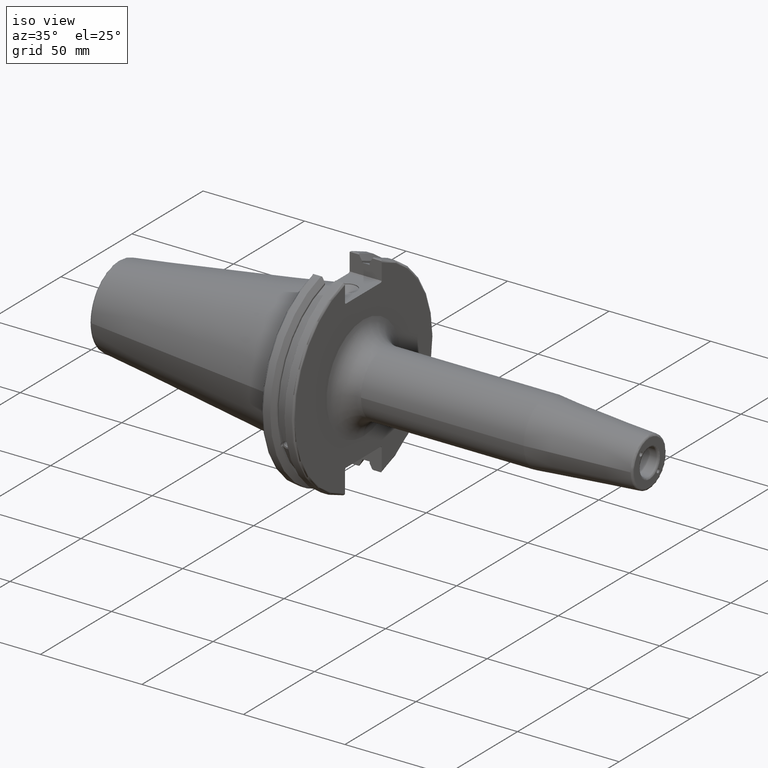
[diagram: clean part render]
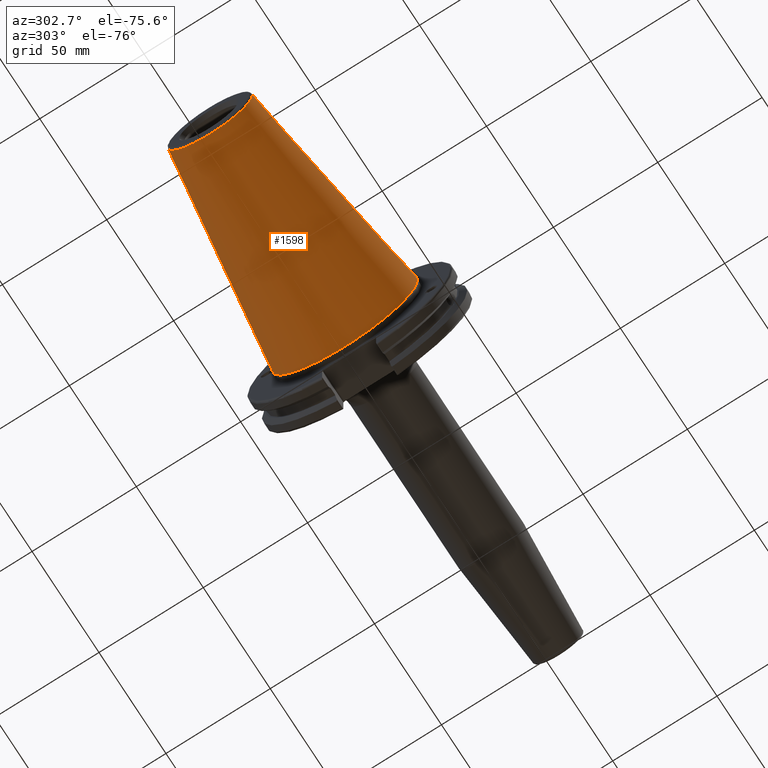
[diagram: tour spotlight — one face highlighted and labeled with its STEP entity id]
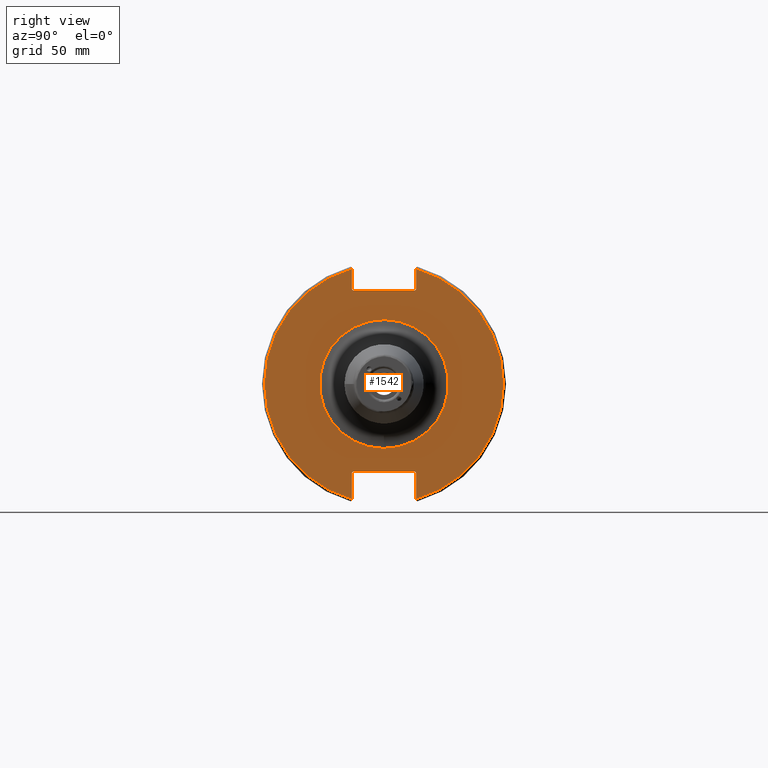
[diagram: tour spotlight — one face highlighted and labeled with its STEP entity id]
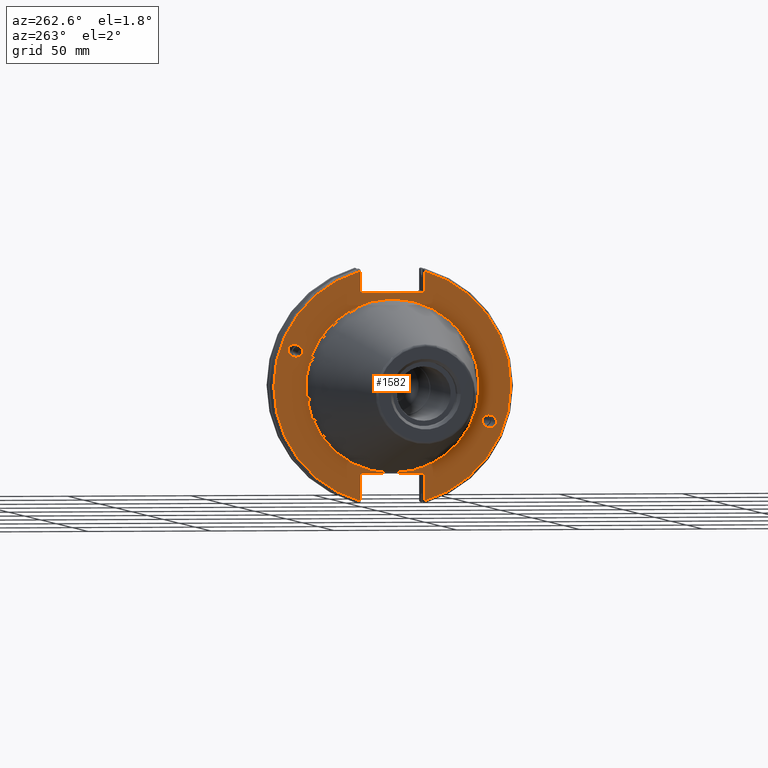
[diagram: tour spotlight — one face highlighted and labeled with its STEP entity id]
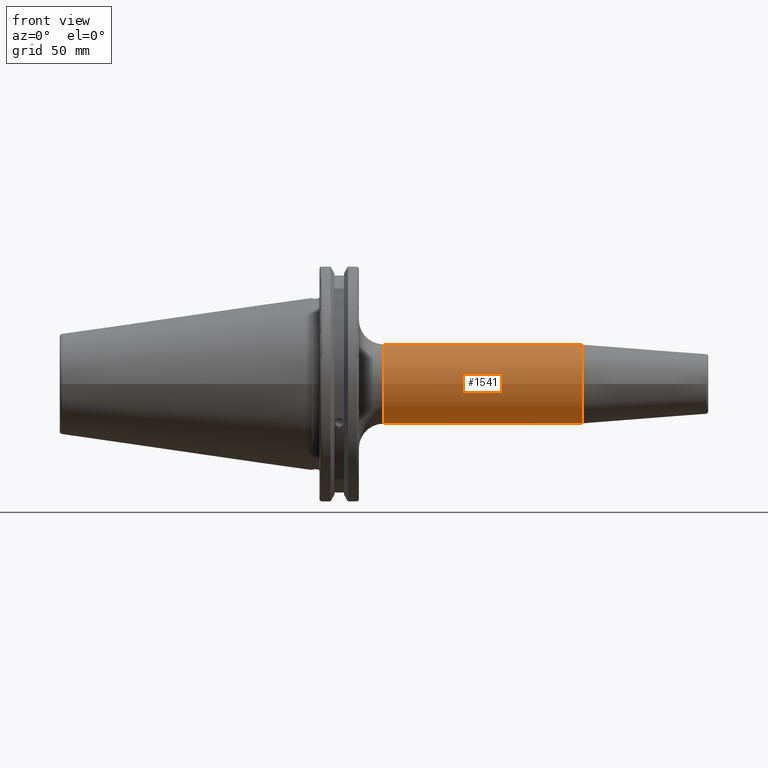
[diagram: tour spotlight — one face highlighted and labeled with its STEP entity id]
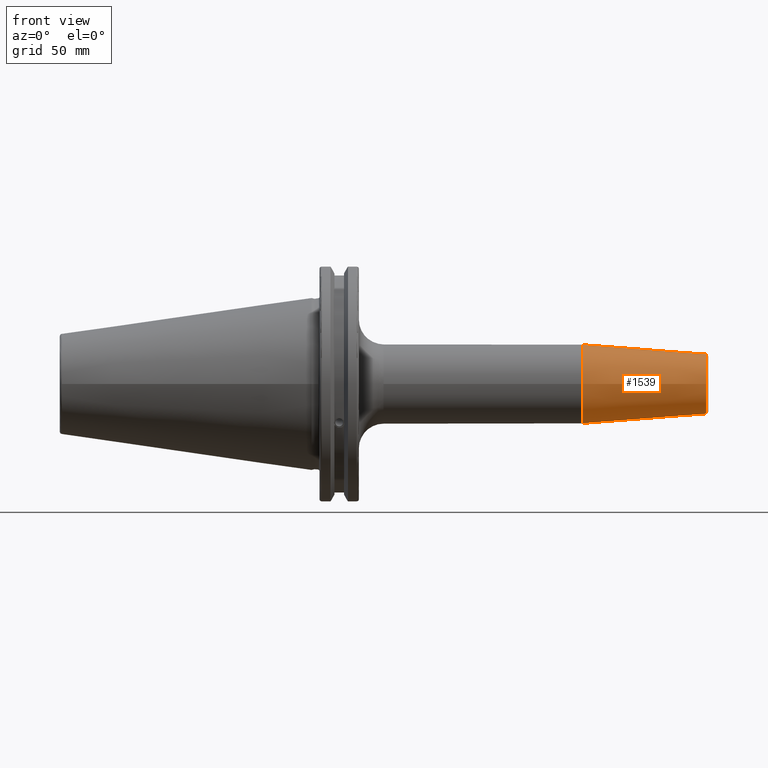
[diagram: tour spotlight — one face highlighted and labeled with its STEP entity id]
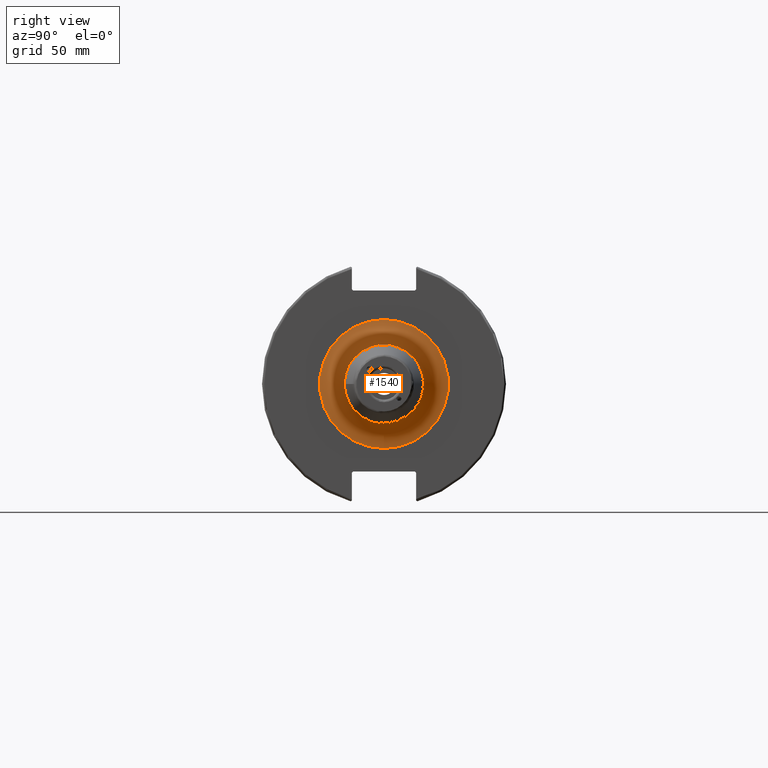
[diagram: tour spotlight — one face highlighted and labeled with its STEP entity id]
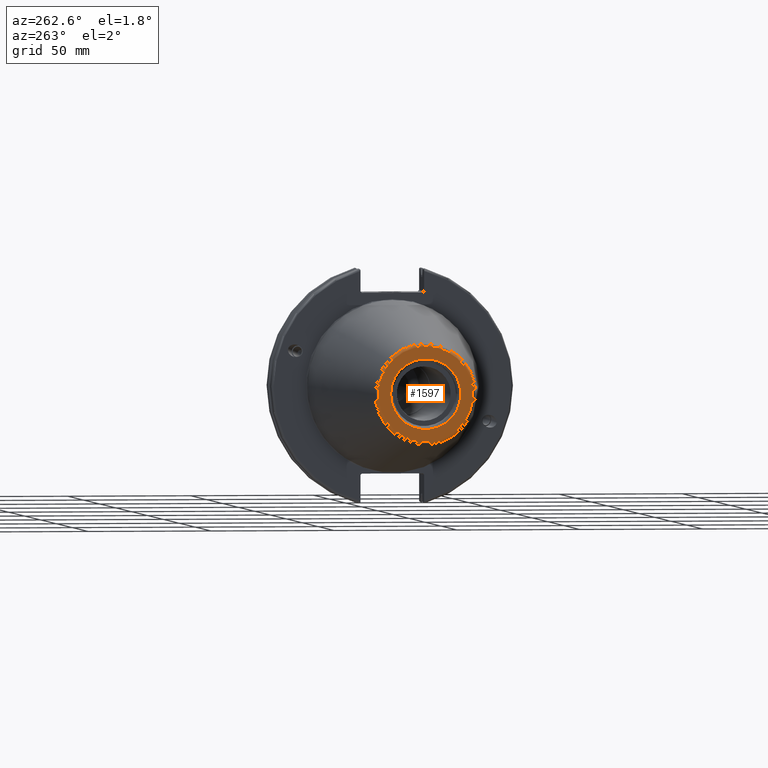
[diagram: tour spotlight — one face highlighted and labeled with its STEP entity id]
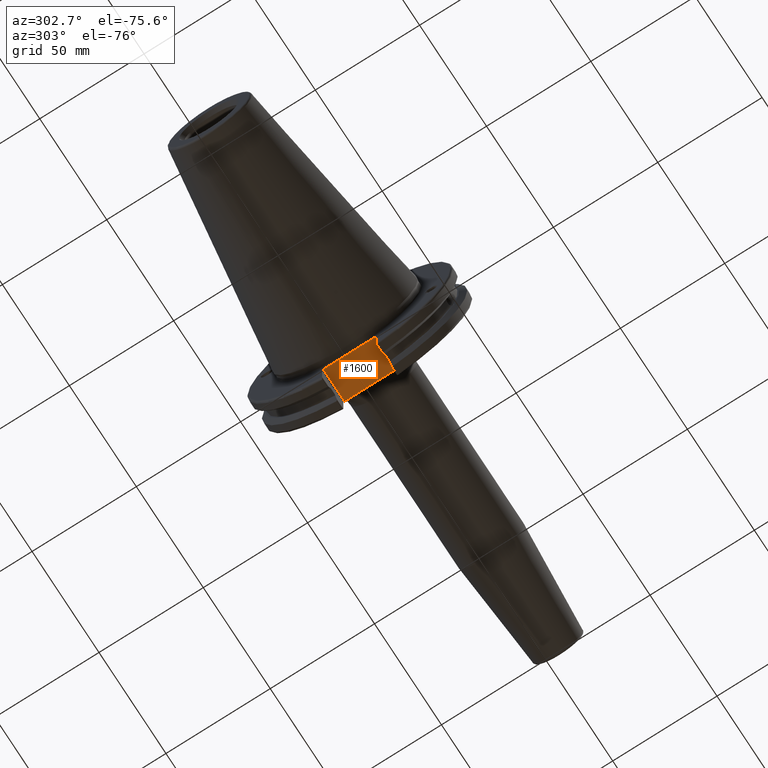
[diagram: tour spotlight — one face highlighted and labeled with its STEP entity id]
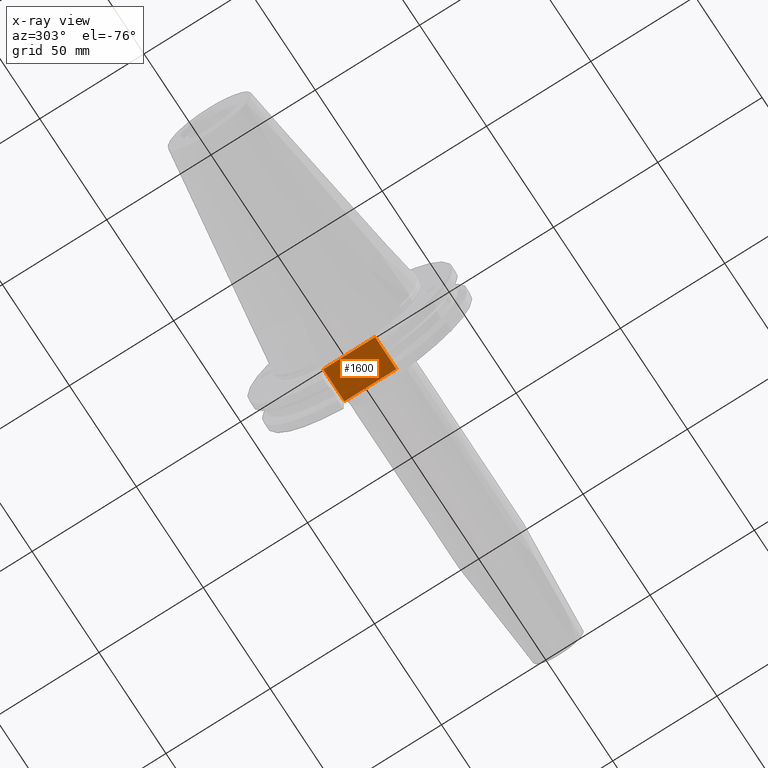
[diagram: x-ray of the same camera — body ghosted, this tour face saturated]
A machine part: a face-by-face anatomy tour. The part has 92 B-rep faces; the first image is the clean iso view, then the 8 largest visible faces are spotlighted one at a time (largest first), each with its STEP entity span.

Face 1 — auxiliary view, entity #1598. In plain terms, the highlighted conical surface has half-angle 8.297 deg.
Definition (entity closure, byte-faithful):
#79=CONICAL_SURFACE('',#1785,27.5166666666666,0.14481249823894);
#163=LINE('',#3162,#261);
#261=VECTOR('',#2180,27.5166666666666);
#437=FACE_OUTER_BOUND('',#549,.T.);
#549=EDGE_LOOP('',(#1394,#1395,#1396,#1397,#1398));
#643=CIRCLE('',#1779,20.233121911427);
#644=CIRCLE('',#1780,20.233121911427);
#648=CIRCLE('',#1786,34.925);
#803=VERTEX_POINT('',#3149);
#804=VERTEX_POINT('',#3150);
#807=VERTEX_POINT('',#3160);
#1015=EDGE_CURVE('',#803,#804,#643,.T.);
#1016=EDGE_CURVE('',#804,#803,#644,.T.);
#1020=EDGE_CURVE('',#807,#807,#648,.T.);
#1021=EDGE_CURVE('',#807,#804,#163,.T.);
#1394=ORIENTED_EDGE('',*,*,#1020,.F.);
#1395=ORIENTED_EDGE('',*,*,#1021,.T.);
#1396=ORIENTED_EDGE('',*,*,#1015,.F.);
#1397=ORIENTED_EDGE('',*,*,#1016,.F.);
#1398=ORIENTED_EDGE('',*,*,#1021,.F.);
#1598=ADVANCED_FACE('',(#437),#79,.T.);
#1779=AXIS2_PLACEMENT_3D('',#3151,#2164,#2165);
#1780=AXIS2_PLACEMENT_3D('',#3152,#2166,#2167);
#1785=AXIS2_PLACEMENT_3D('',#3159,#2176,#2177);
#1786=AXIS2_PLACEMENT_3D('',#3161,#2178,#2179);
#2164=DIRECTION('center_axis',(-1.,0.,0.));
#2165=DIRECTION('ref_axis',(0.,-1.,3.06161699786838E-17));
#2166=DIRECTION('center_axis',(-1.,0.,0.));
#2167=DIRECTION('ref_axis',(0.,-1.,3.06161699786838E-17));
#2176=DIRECTION('center_axis',(1.,0.,0.));
#2177=DIRECTION('ref_axis',(0.,1.,0.));
#2178=DIRECTION('center_axis',(1.,0.,0.));
#2179=DIRECTION('ref_axis',(0.,0.,-1.));
#2180=DIRECTION('',(-0.989532981063281,0.144306893071729,1.76724974695192E-17));
#3149=CARTESIAN_POINT('',(-100.744306893072,-2.47784279855872E-15,20.233121911427));
#3150=CARTESIAN_POINT('',(-100.744306893072,-20.233121911427,-2.47784279855872E-15));
#3151=CARTESIAN_POINT('Origin',(-100.744306893072,0.,-3.09730349819841E-15));
#3152=CARTESIAN_POINT('Origin',(-100.744306893072,0.,-3.09730349819841E-15));
#3159=CARTESIAN_POINT('Origin',(-50.8,0.,0.));
#3160=CARTESIAN_POINT('',(-8.88178419700125E-15,-34.925,-4.27707894602213E-15));
#3161=CARTESIAN_POINT('Origin',(0.,0.,0.));
#3162=CARTESIAN_POINT('',(-50.8,-27.5166666666666,-3.3698197756538E-15));

Face 2 — right view, entity #1542. In plain terms, the highlighted planar face has unit normal (1, 0, 0).
Definition (entity closure, byte-faithful):
#88=LINE('',#2323,#186);
#89=LINE('',#2325,#187);
#90=LINE('',#2327,#188);
#91=LINE('',#2329,#189);
#92=LINE('',#2331,#190);
#93=LINE('',#2335,#191);
#94=LINE('',#2337,#192);
#95=LINE('',#2339,#193);
#96=LINE('',#2341,#194);
#97=LINE('',#2342,#195);
#186=VECTOR('',#1881,10.);
#187=VECTOR('',#1882,10.);
#188=VECTOR('',#1883,10.);
#189=VECTOR('',#1884,10.);
#190=VECTOR('',#1885,10.);
#191=VECTOR('',#1888,10.);
#192=VECTOR('',#1889,10.);
#193=VECTOR('',#1890,10.);
#194=VECTOR('',#1891,10.);
#195=VECTOR('',#1892,10.);
#314=FACE_BOUND('',#477,.T.);
#338=PLANE('',#1673);
#381=FACE_OUTER_BOUND('',#476,.T.);
#476=EDGE_LOOP('',(#1088,#1089,#1090,#1091,#1092,#1093,#1094,#1095,#1096,
#1097,#1098,#1099));
#477=EDGE_LOOP('',(#1100));
#592=CIRCLE('',#1670,26.);
#594=CIRCLE('',#1674,48.2125);
#595=CIRCLE('',#1675,48.2125);
#672=VERTEX_POINT('',#2312);
#673=VERTEX_POINT('',#2319);
#674=VERTEX_POINT('',#2320);
#675=VERTEX_POINT('',#2322);
#676=VERTEX_POINT('',#2324);
#677=VERTEX_POINT('',#2326);
#678=VERTEX_POINT('',#2328);
#679=VERTEX_POINT('',#2330);
#680=VERTEX_POINT('',#2332);
#681=VERTEX_POINT('',#2334);
#682=VERTEX_POINT('',#2336);
#683=VERTEX_POINT('',#2338);
#684=VERTEX_POINT('',#2340);
#834=EDGE_CURVE('',#672,#672,#592,.T.);
#837=EDGE_CURVE('',#673,#674,#594,.T.);
#838=EDGE_CURVE('',#673,#675,#88,.T.);
#839=EDGE_CURVE('',#676,#675,#89,.T.);
#840=EDGE_CURVE('',#676,#677,#90,.T.);
#841=EDGE_CURVE('',#678,#677,#91,.T.);
#842=EDGE_CURVE('',#678,#679,#92,.T.);
#843=EDGE_CURVE('',#680,#679,#595,.T.);
#844=EDGE_CURVE('',#680,#681,#93,.T.);
#845=EDGE_CURVE('',#682,#681,#94,.T.);
#846=EDGE_CURVE('',#682,#683,#95,.T.);
#847=EDGE_CURVE('',#684,#683,#96,.T.);
#848=EDGE_CURVE('',#684,#674,#97,.T.);
#1088=ORIENTED_EDGE('',*,*,#837,.F.);
#1089=ORIENTED_EDGE('',*,*,#838,.T.);
#1090=ORIENTED_EDGE('',*,*,#839,.F.);
#1091=ORIENTED_EDGE('',*,*,#840,.T.);
#1092=ORIENTED_EDGE('',*,*,#841,.F.);
#1093=ORIENTED_EDGE('',*,*,#842,.T.);
#1094=ORIENTED_EDGE('',*,*,#843,.F.);
#1095=ORIENTED_EDGE('',*,*,#844,.T.);
#1096=ORIENTED_EDGE('',*,*,#845,.F.);
#1097=ORIENTED_EDGE('',*,*,#846,.T.);
#1098=ORIENTED_EDGE('',*,*,#847,.F.);
#1099=ORIENTED_EDGE('',*,*,#848,.T.);
#1100=ORIENTED_EDGE('',*,*,#834,.F.);
#1542=ADVANCED_FACE('',(#381,#314),#338,.T.);
#1670=AXIS2_PLACEMENT_3D('',#2314,#1870,#1871);
#1673=AXIS2_PLACEMENT_3D('',#2318,#1877,#1878);
#1674=AXIS2_PLACEMENT_3D('',#2321,#1879,#1880);
#1675=AXIS2_PLACEMENT_3D('',#2333,#1886,#1887);
#1870=DIRECTION('center_axis',(1.,0.,0.));
#1871=DIRECTION('ref_axis',(0.,-1.,-1.22464679914735E-16));
#1877=DIRECTION('center_axis',(1.,0.,0.));
#1878=DIRECTION('ref_axis',(0.,0.,-1.));
#1879=DIRECTION('center_axis',(-1.,0.,0.));
#1880=DIRECTION('ref_axis',(0.,1.,-6.12323399573677E-17));
#1881=DIRECTION('',(0.,0.,-1.));
#1882=DIRECTION('',(0.,0.707106781186549,0.707106781186546));
#1883=DIRECTION('',(0.,-1.,0.));
#1884=DIRECTION('',(0.,0.707106781186549,-0.707106781186546));
#1885=DIRECTION('',(0.,0.,1.));
#1886=DIRECTION('center_axis',(-1.,0.,0.));
#1887=DIRECTION('ref_axis',(0.,-1.,1.60812264967664E-16));
#1888=DIRECTION('',(0.,0.,1.));
#1889=DIRECTION('',(0.,-0.707106781186549,-0.707106781186546));
#1890=DIRECTION('',(0.,1.,0.));
#1891=DIRECTION('',(0.,-0.707106781186549,0.707106781186546));
#1892=DIRECTION('',(0.,0.,-1.));
#2312=CARTESIAN_POINT('',(19.05,-3.18408167778312E-15,-26.));
#2314=CARTESIAN_POINT('Origin',(19.05,0.,0.));
#2318=CARTESIAN_POINT('Origin',(19.05,0.,0.));
#2319=CARTESIAN_POINT('',(19.05,12.95,46.4407434937254));
#2320=CARTESIAN_POINT('',(19.05,12.95,-46.4407434937254));
#2321=CARTESIAN_POINT('Origin',(19.05,0.,0.));
#2322=CARTESIAN_POINT('',(19.05,12.95,38.219));
#2323=CARTESIAN_POINT('',(19.05,12.95,18.8595));
#2324=CARTESIAN_POINT('',(19.05,12.45,37.719));
#2325=CARTESIAN_POINT('',(19.05,0.0327499999999836,25.30175));
#2326=CARTESIAN_POINT('',(19.05,-12.45,37.719));
#2327=CARTESIAN_POINT('',(19.05,0.,37.719));
#2328=CARTESIAN_POINT('',(19.05,-12.95,38.219));
#2329=CARTESIAN_POINT('',(19.05,-0.0327499999999817,25.30175));
#2330=CARTESIAN_POINT('',(19.05,-12.95,46.4407434937254));
#2331=CARTESIAN_POINT('',(19.05,-12.95,18.8595));
#2332=CARTESIAN_POINT('',(19.05,-12.95,-46.4407434937254));
#2333=CARTESIAN_POINT('Origin',(19.05,0.,0.));
#2334=CARTESIAN_POINT('',(19.05,-12.95,-35.806));
#2335=CARTESIAN_POINT('',(19.05,-12.95,-17.653));
#2336=CARTESIAN_POINT('',(19.05,-12.45,-35.306));
#2337=CARTESIAN_POINT('',(19.05,-0.635999999999989,-23.492));
#2338=CARTESIAN_POINT('',(19.05,12.45,-35.306));
#2339=CARTESIAN_POINT('',(19.05,-3.33066907387547E-15,-35.306));
#2340=CARTESIAN_POINT('',(19.05,12.95,-35.806));
#2341=CARTESIAN_POINT('',(19.05,0.635999999999982,-23.492));
#2342=CARTESIAN_POINT('',(19.05,12.95,-17.653));

Face 3 — auxiliary view, entity #1582. In plain terms, the highlighted planar face has unit normal (-1, 0, 0).
Definition (entity closure, byte-faithful):
#136=LINE('',#2936,#234);
#137=LINE('',#2938,#235);
#138=LINE('',#2940,#236);
#139=LINE('',#2942,#237);
#140=LINE('',#2944,#238);
#141=LINE('',#2948,#239);
#142=LINE('',#2950,#240);
#143=LINE('',#2952,#241);
#144=LINE('',#2954,#242);
#145=LINE('',#2955,#243);
#234=VECTOR('',#2095,10.);
#235=VECTOR('',#2096,10.);
#236=VECTOR('',#2097,10.);
#237=VECTOR('',#2098,10.);
#238=VECTOR('',#2099,10.);
#239=VECTOR('',#2102,10.);
#240=VECTOR('',#2103,10.);
#241=VECTOR('',#2104,10.);
#242=VECTOR('',#2105,10.);
#243=VECTOR('',#2106,10.);
#327=FACE_BOUND('',#530,.T.);
#328=FACE_BOUND('',#531,.T.);
#329=FACE_BOUND('',#532,.T.);
#335=ELLIPSE('',#1712,3.05193647190364,2.5);
#336=ELLIPSE('',#1746,3.05193647190364,2.5);
#349=PLANE('',#1756);
#421=FACE_OUTER_BOUND('',#529,.T.);
#529=EDGE_LOOP('',(#1287,#1288,#1289,#1290,#1291,#1292,#1293,#1294,#1295,
#1296,#1297,#1298));
#530=EDGE_LOOP('',(#1299));
#531=EDGE_LOOP('',(#1300));
#532=EDGE_LOOP('',(#1301));
#633=CIRCLE('',#1754,35.125);
#635=CIRCLE('',#1757,48.2125);
#636=CIRCLE('',#1758,48.2125);
#721=VERTEX_POINT('',#2653);
#759=VERTEX_POINT('',#2912);
#764=VERTEX_POINT('',#2927);
#765=VERTEX_POINT('',#2932);
#766=VERTEX_POINT('',#2933);
#767=VERTEX_POINT('',#2935);
#768=VERTEX_POINT('',#2937);
#769=VERTEX_POINT('',#2939);
#770=VERTEX_POINT('',#2941);
#771=VERTEX_POINT('',#2943);
#772=VERTEX_POINT('',#2945);
#773=VERTEX_POINT('',#2947);
#774=VERTEX_POINT('',#2949);
#775=VERTEX_POINT('',#2951);
#776=VERTEX_POINT('',#2953);
#898=EDGE_CURVE('',#721,#721,#335,.T.);
#949=EDGE_CURVE('',#759,#759,#336,.T.);
#956=EDGE_CURVE('',#764,#764,#633,.T.);
#958=EDGE_CURVE('',#765,#766,#635,.T.);
#959=EDGE_CURVE('',#765,#767,#136,.T.);
#960=EDGE_CURVE('',#768,#767,#137,.T.);
#961=EDGE_CURVE('',#768,#769,#138,.T.);
#962=EDGE_CURVE('',#770,#769,#139,.T.);
#963=EDGE_CURVE('',#770,#771,#140,.T.);
#964=EDGE_CURVE('',#772,#771,#636,.T.);
#965=EDGE_CURVE('',#772,#773,#141,.T.);
#966=EDGE_CURVE('',#774,#773,#142,.T.);
#967=EDGE_CURVE('',#774,#775,#143,.T.);
#968=EDGE_CURVE('',#776,#775,#144,.T.);
#969=EDGE_CURVE('',#776,#766,#145,.T.);
#1287=ORIENTED_EDGE('',*,*,#958,.F.);
#1288=ORIENTED_EDGE('',*,*,#959,.T.);
#1289=ORIENTED_EDGE('',*,*,#960,.F.);
#1290=ORIENTED_EDGE('',*,*,#961,.T.);
#1291=ORIENTED_EDGE('',*,*,#962,.F.);
#1292=ORIENTED_EDGE('',*,*,#963,.T.);
#1293=ORIENTED_EDGE('',*,*,#964,.F.);
#1294=ORIENTED_EDGE('',*,*,#965,.T.);
#1295=ORIENTED_EDGE('',*,*,#966,.F.);
#1296=ORIENTED_EDGE('',*,*,#967,.T.);
#1297=ORIENTED_EDGE('',*,*,#968,.F.);
#1298=ORIENTED_EDGE('',*,*,#969,.T.);
#1299=ORIENTED_EDGE('',*,*,#898,.T.);
#1300=ORIENTED_EDGE('',*,*,#949,.T.);
#1301=ORIENTED_EDGE('',*,*,#956,.F.);
#1582=ADVANCED_FACE('',(#421,#327,#328,#329),#349,.T.);
#1712=AXIS2_PLACEMENT_3D('',#2655,#1985,#1986);
#1746=AXIS2_PLACEMENT_3D('',#2914,#2069,#2070);
#1754=AXIS2_PLACEMENT_3D('',#2929,#2087,#2088);
#1756=AXIS2_PLACEMENT_3D('',#2931,#2091,#2092);
#1757=AXIS2_PLACEMENT_3D('',#2934,#2093,#2094);
#1758=AXIS2_PLACEMENT_3D('',#2946,#2100,#2101);
#1985=DIRECTION('center_axis',(1.,0.,0.));
#1986=DIRECTION('ref_axis',(0.,-0.939692620785908,-0.342020143325668));
#2069=DIRECTION('center_axis',(1.,0.,0.));
#2070=DIRECTION('ref_axis',(0.,0.939692620785908,0.342020143325669));
#2087=DIRECTION('center_axis',(-1.,0.,0.));
#2088=DIRECTION('ref_axis',(0.,-1.,1.83697019872103E-16));
#2091=DIRECTION('center_axis',(-1.,0.,0.));
#2092=DIRECTION('ref_axis',(0.,0.,1.));
#2093=DIRECTION('center_axis',(1.,0.,0.));
#2094=DIRECTION('ref_axis',(0.,-1.,1.60812264967664E-16));
#2095=DIRECTION('',(0.,0.,-1.));
#2096=DIRECTION('',(0.,-0.707106781186549,0.707106781186546));
#2097=DIRECTION('',(0.,1.,0.));
#2098=DIRECTION('',(0.,-0.707106781186549,-0.707106781186546));
#2099=DIRECTION('',(0.,0.,1.));
#2100=DIRECTION('center_axis',(1.,0.,0.));
#2101=DIRECTION('ref_axis',(0.,1.,-6.12323399573677E-17));
#2102=DIRECTION('',(0.,0.,1.));
#2103=DIRECTION('',(0.,0.707106781186549,-0.707106781186546));
#2104=DIRECTION('',(0.,-1.,0.));
#2105=DIRECTION('',(0.,0.707106781186549,0.707106781186546));
#2106=DIRECTION('',(0.,0.,-1.));
#2653=CARTESIAN_POINT('',(3.175,-36.5992078912529,-13.3210222701368));
#2655=CARTESIAN_POINT('Origin',(3.175,-39.4670900730082,-14.3648460196781));
#2912=CARTESIAN_POINT('',(3.175,36.5992078912529,13.3210222701368));
#2914=CARTESIAN_POINT('Origin',(3.175,39.4670900730082,14.3648460196781));
#2927=CARTESIAN_POINT('',(3.175,-4.30157188200508E-15,35.125));
#2929=CARTESIAN_POINT('Origin',(3.175,0.,0.));
#2931=CARTESIAN_POINT('Origin',(3.175,49.2125,0.));
#2932=CARTESIAN_POINT('',(3.175,-12.95,46.4407434937254));
#2933=CARTESIAN_POINT('',(3.175,-12.95,-46.4407434937254));
#2934=CARTESIAN_POINT('Origin',(3.175,0.,0.));
#2935=CARTESIAN_POINT('',(3.175,-12.95,38.219));
#2936=CARTESIAN_POINT('',(3.175,-12.95,18.8595));
#2937=CARTESIAN_POINT('',(3.175,-12.45,37.719));
#2938=CARTESIAN_POINT('',(3.175,12.2703750000001,12.998625));
#2939=CARTESIAN_POINT('',(3.175,12.45,37.719));
#2940=CARTESIAN_POINT('',(3.175,24.60625,37.719));
#2941=CARTESIAN_POINT('',(3.175,12.95,38.219));
#2942=CARTESIAN_POINT('',(3.175,12.335875,37.604875));
#2943=CARTESIAN_POINT('',(3.175,12.95,46.4407434937254));
#2944=CARTESIAN_POINT('',(3.175,12.95,18.8595));
#2945=CARTESIAN_POINT('',(3.175,12.95,-46.4407434937254));
#2946=CARTESIAN_POINT('Origin',(3.175,0.,0.));
#2947=CARTESIAN_POINT('',(3.175,12.95,-35.806));
#2948=CARTESIAN_POINT('',(3.175,12.95,-17.653));
#2949=CARTESIAN_POINT('',(3.175,12.45,-35.306));
#2950=CARTESIAN_POINT('',(3.175,12.939125,-35.795125));
#2951=CARTESIAN_POINT('',(3.175,-12.45,-35.306));
#2952=CARTESIAN_POINT('',(3.175,24.60625,-35.306));
#2953=CARTESIAN_POINT('',(3.175,-12.95,-35.806));
#2954=CARTESIAN_POINT('',(3.175,11.6671250000001,-11.188875));
#2955=CARTESIAN_POINT('',(3.175,-12.95,-17.653));

Face 4 — front view, entity #1541. In plain terms, the highlighted cylindrical surface (bore or boss wall) has radius 16 mm, axis along (1, 0, 0).
Definition (entity closure, byte-faithful):
#87=LINE('',#2317,#185);
#185=VECTOR('',#1876,16.);
#282=CYLINDRICAL_SURFACE('',#1672,16.);
#380=FACE_OUTER_BOUND('',#475,.T.);
#475=EDGE_LOOP('',(#1083,#1084,#1085,#1086,#1087));
#589=CIRCLE('',#1666,16.);
#590=CIRCLE('',#1668,16.);
#593=CIRCLE('',#1671,16.);
#669=VERTEX_POINT('',#2305);
#670=VERTEX_POINT('',#2309);
#671=VERTEX_POINT('',#2310);
#831=EDGE_CURVE('',#669,#669,#589,.T.);
#832=EDGE_CURVE('',#670,#671,#590,.T.);
#835=EDGE_CURVE('',#671,#670,#593,.T.);
#836=EDGE_CURVE('',#669,#670,#87,.T.);
#1083=ORIENTED_EDGE('',*,*,#831,.F.);
#1084=ORIENTED_EDGE('',*,*,#836,.T.);
#1085=ORIENTED_EDGE('',*,*,#835,.F.);
#1086=ORIENTED_EDGE('',*,*,#832,.F.);
#1087=ORIENTED_EDGE('',*,*,#836,.F.);
#1541=ADVANCED_FACE('',(#380),#282,.T.);
#1666=AXIS2_PLACEMENT_3D('',#2307,#1862,#1863);
#1668=AXIS2_PLACEMENT_3D('',#2311,#1866,#1867);
#1671=AXIS2_PLACEMENT_3D('',#2315,#1872,#1873);
#1672=AXIS2_PLACEMENT_3D('',#2316,#1874,#1875);
#1862=DIRECTION('center_axis',(1.,0.,0.));
#1863=DIRECTION('ref_axis',(0.,0.,-1.));
#1866=DIRECTION('center_axis',(-1.,0.,0.));
#1867=DIRECTION('ref_axis',(0.,-1.,-1.22464679914735E-16));
#1872=DIRECTION('center_axis',(-1.,0.,0.));
#1873=DIRECTION('ref_axis',(0.,-1.,-1.22464679914735E-16));
#1874=DIRECTION('center_axis',(1.,0.,0.));
#1875=DIRECTION('ref_axis',(0.,1.,0.));
#1876=DIRECTION('',(-1.,0.,0.));
#2305=CARTESIAN_POINT('',(109.175181055301,-16.,-1.95943487863577E-15));
#2307=CARTESIAN_POINT('Origin',(109.175181055301,0.,0.));
#2309=CARTESIAN_POINT('',(29.05,-16.,-1.95943487863577E-15));
#2310=CARTESIAN_POINT('',(29.05,-1.95943487863577E-15,-16.));
#2311=CARTESIAN_POINT('Origin',(29.05,0.,0.));
#2315=CARTESIAN_POINT('Origin',(29.05,0.,0.));
#2316=CARTESIAN_POINT('Origin',(64.1125905276506,0.,0.));
#2317=CARTESIAN_POINT('',(64.1125905276506,-16.,-1.95943487863577E-15));

Face 5 — front view, entity #1539. In plain terms, the highlighted conical surface has half-angle 4.5 deg.
Definition (entity closure, byte-faithful):
#69=CONICAL_SURFACE('',#1665,14.,0.0785398163397448);
#86=LINE('',#2306,#184);
#184=VECTOR('',#1861,14.);
#378=FACE_OUTER_BOUND('',#473,.T.);
#473=EDGE_LOOP('',(#1073,#1074,#1075,#1076,#1077));
#587=CIRCLE('',#1663,12.0725268420749);
#588=CIRCLE('',#1664,12.0725268420749);
#589=CIRCLE('',#1666,16.);
#667=VERTEX_POINT('',#2299);
#668=VERTEX_POINT('',#2301);
#669=VERTEX_POINT('',#2305);
#828=EDGE_CURVE('',#667,#668,#587,.T.);
#829=EDGE_CURVE('',#668,#667,#588,.T.);
#830=EDGE_CURVE('',#668,#669,#86,.T.);
#831=EDGE_CURVE('',#669,#669,#589,.T.);
#1073=ORIENTED_EDGE('',*,*,#829,.F.);
#1074=ORIENTED_EDGE('',*,*,#830,.T.);
#1075=ORIENTED_EDGE('',*,*,#831,.T.);
#1076=ORIENTED_EDGE('',*,*,#830,.F.);
#1077=ORIENTED_EDGE('',*,*,#828,.F.);
#1539=ADVANCED_FACE('',(#378),#69,.T.);
#1663=AXIS2_PLACEMENT_3D('',#2302,#1855,#1856);
#1664=AXIS2_PLACEMENT_3D('',#2303,#1857,#1858);
#1665=AXIS2_PLACEMENT_3D('',#2304,#1859,#1860);
#1666=AXIS2_PLACEMENT_3D('',#2307,#1862,#1863);
#1855=DIRECTION('center_axis',(1.,0.,0.));
#1856=DIRECTION('ref_axis',(0.,-1.,3.06161699786838E-17));
#1857=DIRECTION('center_axis',(1.,0.,0.));
#1858=DIRECTION('ref_axis',(0.,-1.,3.06161699786838E-17));
#1859=DIRECTION('center_axis',(-1.,0.,0.));
#1860=DIRECTION('ref_axis',(0.,1.,0.));
#1861=DIRECTION('',(-0.996917333733128,-0.0784590957278449,-9.6084680447101E-18));
#1862=DIRECTION('center_axis',(1.,0.,0.));
#1863=DIRECTION('ref_axis',(0.,0.,-1.));
#2299=CARTESIAN_POINT('',(159.078459095728,-1.47845813547676E-15,12.0725268420749));
#2301=CARTESIAN_POINT('',(159.078459095728,-12.0725268420749,-1.47845813547676E-15));
#2302=CARTESIAN_POINT('Origin',(159.078459095728,0.,-1.84807266934594E-15));
#2303=CARTESIAN_POINT('Origin',(159.078459095728,0.,-1.84807266934594E-15));
#2304=CARTESIAN_POINT('Origin',(134.587590527651,0.,0.));
#2305=CARTESIAN_POINT('',(109.175181055301,-16.,-1.95943487863577E-15));
#2306=CARTESIAN_POINT('',(134.587590527651,-14.,-1.71450551880629E-15));
#2307=CARTESIAN_POINT('Origin',(109.175181055301,0.,0.));

Face 6 — right view, entity #1540. In plain terms, the highlighted toroidal blend (fillet) surface has major radius 26 mm and minor (blend) radius 10 mm.
Definition (entity closure, byte-faithful):
#379=FACE_OUTER_BOUND('',#474,.T.);
#474=EDGE_LOOP('',(#1078,#1079,#1080,#1081,#1082));
#590=CIRCLE('',#1668,16.);
#591=CIRCLE('',#1669,10.);
#592=CIRCLE('',#1670,26.);
#593=CIRCLE('',#1671,16.);
#670=VERTEX_POINT('',#2309);
#671=VERTEX_POINT('',#2310);
#672=VERTEX_POINT('',#2312);
#832=EDGE_CURVE('',#670,#671,#590,.T.);
#833=EDGE_CURVE('',#671,#672,#591,.T.);
#834=EDGE_CURVE('',#672,#672,#592,.T.);
#835=EDGE_CURVE('',#671,#670,#593,.T.);
#1078=ORIENTED_EDGE('',*,*,#832,.T.);
#1079=ORIENTED_EDGE('',*,*,#833,.T.);
#1080=ORIENTED_EDGE('',*,*,#834,.T.);
#1081=ORIENTED_EDGE('',*,*,#833,.F.);
#1082=ORIENTED_EDGE('',*,*,#835,.T.);
#1528=TOROIDAL_SURFACE('',#1667,26.,10.);
#1540=ADVANCED_FACE('',(#379),#1528,.F.);
#1667=AXIS2_PLACEMENT_3D('',#2308,#1864,#1865);
#1668=AXIS2_PLACEMENT_3D('',#2311,#1866,#1867);
#1669=AXIS2_PLACEMENT_3D('',#2313,#1868,#1869);
#1670=AXIS2_PLACEMENT_3D('',#2314,#1870,#1871);
#1671=AXIS2_PLACEMENT_3D('',#2315,#1872,#1873);
#1864=DIRECTION('center_axis',(-1.,0.,0.));
#1865=DIRECTION('ref_axis',(0.,0.,1.));
#1866=DIRECTION('center_axis',(-1.,0.,0.));
#1867=DIRECTION('ref_axis',(0.,-1.,-1.22464679914735E-16));
#1868=DIRECTION('center_axis',(0.,-1.,1.22464679914735E-16));
#1869=DIRECTION('ref_axis',(0.,-1.22464679914735E-16,-1.));
#1870=DIRECTION('center_axis',(1.,0.,0.));
#1871=DIRECTION('ref_axis',(0.,-1.,-1.22464679914735E-16));
#1872=DIRECTION('center_axis',(-1.,0.,0.));
#1873=DIRECTION('ref_axis',(0.,-1.,-1.22464679914735E-16));
#2308=CARTESIAN_POINT('Origin',(29.05,0.,0.));
#2309=CARTESIAN_POINT('',(29.05,-16.,-1.95943487863577E-15));
#2310=CARTESIAN_POINT('',(29.05,-1.95943487863577E-15,-16.));
#2311=CARTESIAN_POINT('Origin',(29.05,0.,0.));
#2312=CARTESIAN_POINT('',(19.05,-3.18408167778312E-15,-26.));
#2313=CARTESIAN_POINT('Origin',(29.05,-3.18408167778312E-15,-26.));
#2314=CARTESIAN_POINT('Origin',(19.05,0.,0.));
#2315=CARTESIAN_POINT('Origin',(29.05,0.,0.));

Face 7 — auxiliary view, entity #1597. In plain terms, the highlighted planar face has unit normal (-1, 0, 0).
Definition (entity closure, byte-faithful):
#330=FACE_BOUND('',#548,.T.);
#357=PLANE('',#1783);
#436=FACE_OUTER_BOUND('',#547,.T.);
#547=EDGE_LOOP('',(#1392));
#548=EDGE_LOOP('',(#1393));
#646=CIRCLE('',#1782,19.2435889303637);
#647=CIRCLE('',#1784,14.2875);
#805=VERTEX_POINT('',#3153);
#806=VERTEX_POINT('',#3157);
#1018=EDGE_CURVE('',#805,#805,#646,.T.);
#1019=EDGE_CURVE('',#806,#806,#647,.T.);
#1392=ORIENTED_EDGE('',*,*,#1018,.F.);
#1393=ORIENTED_EDGE('',*,*,#1019,.T.);
#1597=ADVANCED_FACE('',(#436,#330),#357,.T.);
#1782=AXIS2_PLACEMENT_3D('',#3155,#2170,#2171);
#1783=AXIS2_PLACEMENT_3D('',#3156,#2172,#2173);
#1784=AXIS2_PLACEMENT_3D('',#3158,#2174,#2175);
#2170=DIRECTION('center_axis',(1.,0.,0.));
#2171=DIRECTION('ref_axis',(0.,-1.,1.83697019872103E-16));
#2172=DIRECTION('center_axis',(-1.,0.,0.));
#2173=DIRECTION('ref_axis',(0.,0.,1.));
#2174=DIRECTION('center_axis',(1.,0.,0.));
#2175=DIRECTION('ref_axis',(0.,0.,-1.));
#3153=CARTESIAN_POINT('',(-101.6,-2.35665995876774E-15,19.2435889303637));
#3155=CARTESIAN_POINT('Origin',(-101.6,0.,0.));
#3156=CARTESIAN_POINT('Origin',(-101.6,20.1083333333333,0.));
#3157=CARTESIAN_POINT('',(-101.6,-14.2875,-1.74971411428178E-15));
#3158=CARTESIAN_POINT('Origin',(-101.6,0.,0.));

Face 8 — auxiliary view, entity #1600. An x-ray twin of the same camera follows (body ghosted, this face saturated) — the face is partly hidden behind the body. In plain terms, the highlighted planar face has unit normal (0, 0, 1).
Definition (entity closure, byte-faithful):
#95=LINE('',#2339,#193);
#143=LINE('',#2952,#241);
#164=LINE('',#3164,#262);
#165=LINE('',#3166,#263);
#193=VECTOR('',#1890,10.);
#241=VECTOR('',#2104,10.);
#262=VECTOR('',#2183,10.);
#263=VECTOR('',#2186,10.);
#359=PLANE('',#1788);
#439=FACE_OUTER_BOUND('',#551,.T.);
#551=EDGE_LOOP('',(#1403,#1404,#1405,#1406));
#682=VERTEX_POINT('',#2336);
#683=VERTEX_POINT('',#2338);
#774=VERTEX_POINT('',#2949);
#775=VERTEX_POINT('',#2951);
#846=EDGE_CURVE('',#682,#683,#95,.T.);
#967=EDGE_CURVE('',#774,#775,#143,.T.);
#1022=EDGE_CURVE('',#683,#774,#164,.T.);
#1023=EDGE_CURVE('',#775,#682,#165,.T.);
#1403=ORIENTED_EDGE('',*,*,#1022,.F.);
#1404=ORIENTED_EDGE('',*,*,#846,.F.);
#1405=ORIENTED_EDGE('',*,*,#1023,.F.);
#1406=ORIENTED_EDGE('',*,*,#967,.F.);
#1600=ADVANCED_FACE('',(#439),#359,.F.);
#1788=AXIS2_PLACEMENT_3D('',#3165,#2184,#2185);
#1890=DIRECTION('',(0.,1.,0.));
#2104=DIRECTION('',(0.,-1.,0.));
#2183=DIRECTION('',(-1.,2.63163976207444E-16,0.));
#2184=DIRECTION('center_axis',(0.,0.,1.));
#2185=DIRECTION('ref_axis',(1.,0.,0.));
#2186=DIRECTION('',(1.,2.63163976207445E-16,0.));
#2336=CARTESIAN_POINT('',(19.05,-12.45,-35.306));
#2338=CARTESIAN_POINT('',(19.05,12.45,-35.306));
#2339=CARTESIAN_POINT('',(19.05,-3.33066907387547E-15,-35.306));
#2949=CARTESIAN_POINT('',(3.175,12.45,-35.306));
#2951=CARTESIAN_POINT('',(3.175,-12.45,-35.306));
#2952=CARTESIAN_POINT('',(3.175,24.60625,-35.306));
#3164=CARTESIAN_POINT('',(10.63125,12.45,-35.306));
#3165=CARTESIAN_POINT('Origin',(18.0875,-6.66133814775094E-15,-35.306));
#3166=CARTESIAN_POINT('',(19.06875,-12.45,-35.306));